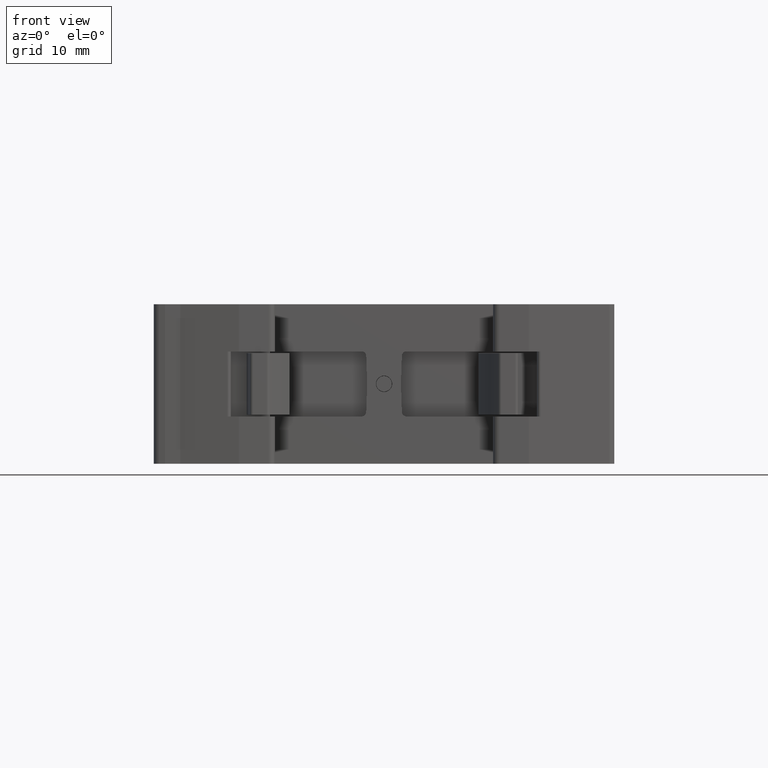
[diagram: clean part render]
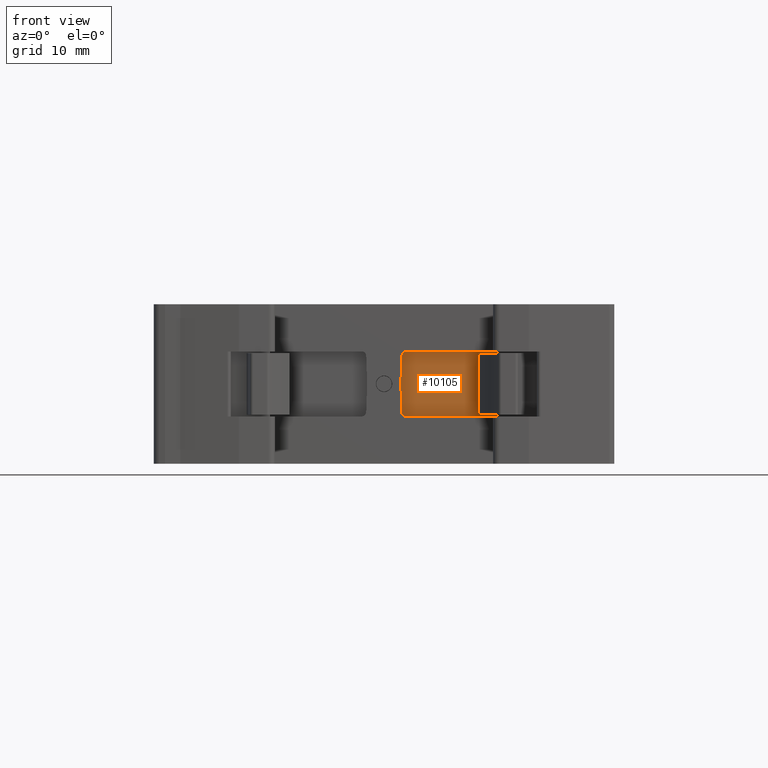
[diagram: same view with one face highlighted and labeled with its STEP entity id]
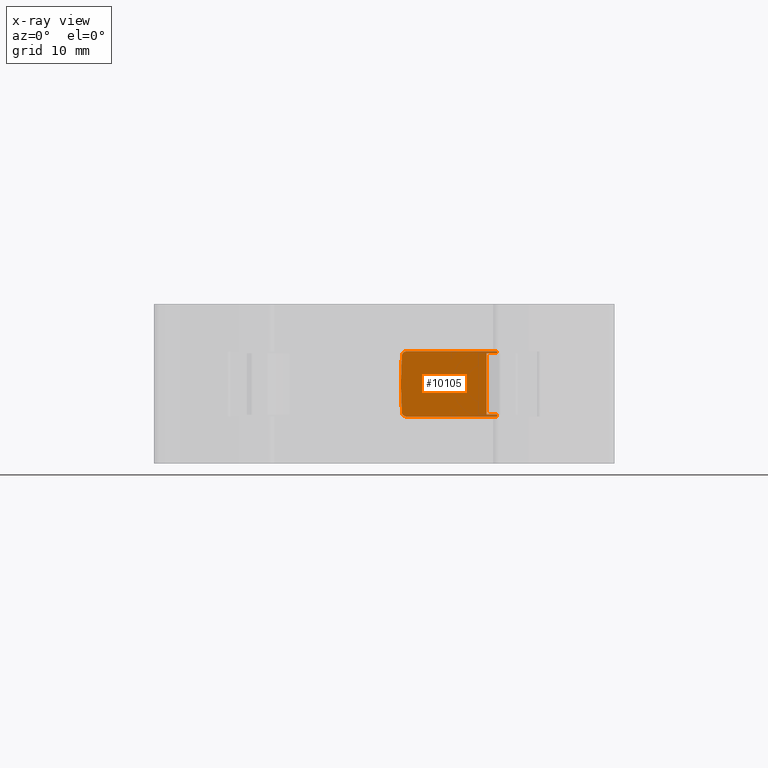
[diagram: x-ray of the same camera — body ghosted, the highlighted face saturated]
A machine part, front view. The second image highlights one B-rep face of the part: STEP entity #10105.
The next image is the same camera in x-ray: the body ghosted, the highlighted face saturated — about 0% of this face is hidden behind the body in this view.
In plain terms, the highlighted planar face has unit normal (-0, -1, -0).
Its self-contained STEP definition (entity closure, byte-faithful):
#1354 = CARTESIAN_POINT ( 'NONE',  ( 21.82336937827313900, -53.59993437637680800, -16.25450991172171900 ) ) ;
#1731 = VECTOR ( 'NONE', #4017, 1000.000000000000000 ) ;
#1953 = EDGE_CURVE ( 'NONE', #11304, #11312, #4936, .T. ) ;
#1967 = EDGE_CURVE ( 'NONE', #11310, #11316, #4979, .T. ) ;
#2017 = EDGE_CURVE ( 'NONE', #11344, #11292, #5328, .T. ) ;
#2040 = EDGE_CURVE ( 'NONE', #11475, #11314, #5665, .T. ) ;
#3384 = LINE ( 'NONE', #3394, #16483 ) ;
#3391 = DIRECTION ( 'NONE',  ( 0.0000000000000000000, 0.0000000000000000000, -1.000000000000000000 ) ) ;
#3394 = CARTESIAN_POINT ( 'NONE',  ( 21.82336937827316000, -53.59993437637682200, -4.254509911721707600 ) ) ;
#3439 = LINE ( 'NONE', #3506, #16492 ) ;
#3459 = CARTESIAN_POINT ( 'NONE',  ( 8.794416599768483800, -53.59993437637682200, -5.951015883152556400 ) ) ;
#3506 = CARTESIAN_POINT ( 'NONE',  ( 23.57362489403342200, -53.59993437637685100, 52.07040954962347000 ) ) ;
#3528 = DIRECTION ( 'NONE',  ( -2.448524028097272300E-014, 5.520198519828830100E-016, -1.000000000000000000 ) ) ;
#3559 = VECTOR ( 'NONE', #5346, 1000.000000000000000 ) ;
#3612 = VECTOR ( 'NONE', #5650, 1000.000000000000000 ) ;
#3741 = VECTOR ( 'NONE', #4978, 1000.000000000000000 ) ;
#3750 = VECTOR ( 'NONE', #4938, 1000.000000000000000 ) ;
#3982 = LINE ( 'NONE', #4016, #1731 ) ;
#4016 = CARTESIAN_POINT ( 'NONE',  ( 10.11969508021977400, -53.59993437637685100, 52.74027561414751400 ) ) ;
#4017 = DIRECTION ( 'NONE',  ( 0.03489949670260984700, -5.516835764041306700E-016, 0.9993908270190919900 ) ) ;
#4936 = LINE ( 'NONE', #4937, #3750 ) ;
#4937 = CARTESIAN_POINT ( 'NONE',  ( 29.30214936949756000, -53.59993437637681500, -5.951015883166904900 ) ) ;
#4938 = DIRECTION ( 'NONE',  ( 1.000000000000000000, 5.052040861586438200E-029, -1.160044282855209900E-013 ) ) ;
#4978 = DIRECTION ( 'NONE',  ( -1.000000000000000000, 5.806870668106065700E-030, 1.396592535552666100E-014 ) ) ;
#4979 = LINE ( 'NONE', #4985, #3741 ) ;
#4985 = CARTESIAN_POINT ( 'NONE',  ( 29.30214936950333300, -53.59993437637681500, -16.55800394025071400 ) ) ;
#5328 = LINE ( 'NONE', #5340, #3559 ) ;
#5340 = CARTESIAN_POINT ( 'NONE',  ( -38.16481377267766100, -53.59993437637680800, -16.25450991172171900 ) ) ;
#5346 = DIRECTION ( 'NONE',  ( -1.000000000000000000, 1.351633871566788600E-029, 0.0000000000000000000 ) ) ;
#5620 = CARTESIAN_POINT ( 'NONE',  ( -33.74242936765686800, -53.59993437637681500, -6.254509911721696900 ) ) ;
#5650 = DIRECTION ( 'NONE',  ( 1.000000000000000000, -1.351633871566788600E-029, 0.0000000000000000000 ) ) ;
#5665 = LINE ( 'NONE', #5620, #3612 ) ;
#5774 = EDGE_LOOP ( 'NONE', ( #21778, #21771, #21781, #21776, #21798, #21824, #21782, #21825, #21777, #21800, #21792 ) ) ;
#6919 = VECTOR ( 'NONE', #16946, 1000.000000000000000 ) ;
#8275 = EDGE_CURVE ( 'NONE', #20524, #20562, #3982, .T. ) ;
#9021 = DIRECTION ( 'NONE',  ( 0.0000000000000000000, 5.520198519828830100E-016, -1.000000000000000000 ) ) ;
#9056 = PLANE ( 'NONE',  #9727 ) ;
#9057 = CARTESIAN_POINT ( 'NONE',  ( 29.30214936950429200, -53.59993437637685100, 52.07040954962332800 ) ) ;
#9058 = DIRECTION ( 'NONE',  ( -1.351633871566788600E-029, -1.000000000000000000, -5.520198519828830100E-016 ) ) ;
#9062 = FACE_OUTER_BOUND ( 'NONE', #5774, .T. ) ;
#9727 = AXIS2_PLACEMENT_3D ( 'NONE', #9057, #9058, #9021 ) ;
#10105 = ADVANCED_FACE ( 'NONE', ( #9062 ), #9056, .T. ) ;
#10344 = EDGE_CURVE ( 'NONE', #11475, #11292, #3384, .T. ) ;
#10586 = EDGE_CURVE ( 'NONE', #11312, #11314, #3439, .T. ) ;
#11292 = VERTEX_POINT ( 'NONE', #1354 ) ;
#11304 = VERTEX_POINT ( 'NONE', #3459 ) ;
#11310 = VERTEX_POINT ( 'NONE', #19104 ) ;
#11312 = VERTEX_POINT ( 'NONE', #19072 ) ;
#11314 = VERTEX_POINT ( 'NONE', #19081 ) ;
#11316 = VERTEX_POINT ( 'NONE', #19094 ) ;
#11344 = VERTEX_POINT ( 'NONE', #19118 ) ;
#11396 = EDGE_CURVE ( 'NONE', #20562, #11304, #16589, .T. ) ;
#11432 = EDGE_CURVE ( 'NONE', #11316, #20529, #16593, .T. ) ;
#11461 = EDGE_CURVE ( 'NONE', #20529, #20524, #19207, .T. ) ;
#11475 = VERTEX_POINT ( 'NONE', #19208 ) ;
#12045 = EDGE_CURVE ( 'NONE', #11344, #11310, #16963, .T. ) ;
#16483 = VECTOR ( 'NONE', #3391, 1000.000000000000000 ) ;
#16492 = VECTOR ( 'NONE', #3528, 1000.000000000000000 ) ;
#16587 = AXIS2_PLACEMENT_3D ( 'NONE', #19126, #19136, #19163 ) ;
#16589 = CIRCLE ( 'NONE', #16587, 0.7500000000000302000 ) ;
#16593 = CIRCLE ( 'NONE', #16598, 0.7500000000000284200 ) ;
#16596 = VECTOR ( 'NONE', #19203, 999.9999999999998900 ) ;
#16598 = AXIS2_PLACEMENT_3D ( 'NONE', #19219, #19221, #19176 ) ;
#16929 = CARTESIAN_POINT ( 'NONE',  ( 23.57362489403342200, -53.59993437637685100, 52.07040954962347000 ) ) ;
#16946 = DIRECTION ( 'NONE',  ( -2.448524028097272300E-014, 5.520198519828830100E-016, -1.000000000000000000 ) ) ;
#16963 = LINE ( 'NONE', #16929, #6919 ) ;
#19072 = CARTESIAN_POINT ( 'NONE',  ( 23.57362489403200100, -53.59993437637681500, -5.951015883152555500 ) ) ;
#19081 = CARTESIAN_POINT ( 'NONE',  ( 23.57362489403199400, -53.59993437637681500, -6.254509911721696900 ) ) ;
#19094 = CARTESIAN_POINT ( 'NONE',  ( 8.794418627798481900, -53.59993437637681500, -16.55800394025042300 ) ) ;
#19104 = CARTESIAN_POINT ( 'NONE',  ( 23.57362489403174200, -53.59993437637681500, -16.55800394026238500 ) ) ;
#19118 = CARTESIAN_POINT ( 'NONE',  ( 23.57362489403174900, -53.59993437637681500, -16.25450991172172600 ) ) ;
#19126 = CARTESIAN_POINT ( 'NONE',  ( 8.794416599768483800, -53.59993437637682200, -6.701015883152586600 ) ) ;
#19136 = DIRECTION ( 'NONE',  ( 1.351633871566788600E-029, 1.000000000000000000, 5.520198519828830100E-016 ) ) ;
#19163 = DIRECTION ( 'NONE',  ( 0.0000000000000000000, 0.0000000000000000000, -1.000000000000000000 ) ) ;
#19176 = DIRECTION ( 'NONE',  ( 0.0000000000000000000, 0.0000000000000000000, -1.000000000000000000 ) ) ;
#19192 = CARTESIAN_POINT ( 'NONE',  ( 5.702374024021555200, -53.59993437637685100, 51.24628723472719800 ) ) ;
#19203 = DIRECTION ( 'NONE',  ( -0.03489949670247986100, -5.516835764041323500E-016, 0.9993908270190965400 ) ) ;
#19207 = LINE ( 'NONE', #19192, #16596 ) ;
#19208 = CARTESIAN_POINT ( 'NONE',  ( 21.82336937827314900, -53.59993437637681500, -6.254509911721696900 ) ) ;
#19219 = CARTESIAN_POINT ( 'NONE',  ( 8.794418627798757300, -53.59993437637680800, -15.80800394026234700 ) ) ;
#19221 = DIRECTION ( 'NONE',  ( 1.351633871566788600E-029, 1.000000000000000000, 5.520198519828830100E-016 ) ) ;
#20524 = VERTEX_POINT ( 'NONE', #24059 ) ;
#20529 = VERTEX_POINT ( 'NONE', #24017 ) ;
#20562 = VERTEX_POINT ( 'NONE', #23091 ) ;
#21771 = ORIENTED_EDGE ( 'NONE', *, *, #1953, .F. ) ;
#21776 = ORIENTED_EDGE ( 'NONE', *, *, #8275, .F. ) ;
#21777 = ORIENTED_EDGE ( 'NONE', *, *, #2017, .T. ) ;
#21778 = ORIENTED_EDGE ( 'NONE', *, *, #10586, .F. ) ;
#21781 = ORIENTED_EDGE ( 'NONE', *, *, #11396, .F. ) ;
#21782 = ORIENTED_EDGE ( 'NONE', *, *, #1967, .F. ) ;
#21792 = ORIENTED_EDGE ( 'NONE', *, *, #2040, .T. ) ;
#21798 = ORIENTED_EDGE ( 'NONE', *, *, #11461, .F. ) ;
#21800 = ORIENTED_EDGE ( 'NONE', *, *, #10344, .F. ) ;
#21824 = ORIENTED_EDGE ( 'NONE', *, *, #11432, .F. ) ;
#21825 = ORIENTED_EDGE ( 'NONE', *, *, #12045, .F. ) ;
#23091 = CARTESIAN_POINT ( 'NONE',  ( 8.044873479504088800, -53.59993437637681500, -6.674841260625632900 ) ) ;
#24017 = CARTESIAN_POINT ( 'NONE',  ( 8.044875507534351700, -53.59993437637680800, -15.83417856278769500 ) ) ;
#24059 = CARTESIAN_POINT ( 'NONE',  ( 7.884949954220664900, -53.59993437637681500, -11.25450991168748500 ) ) ;